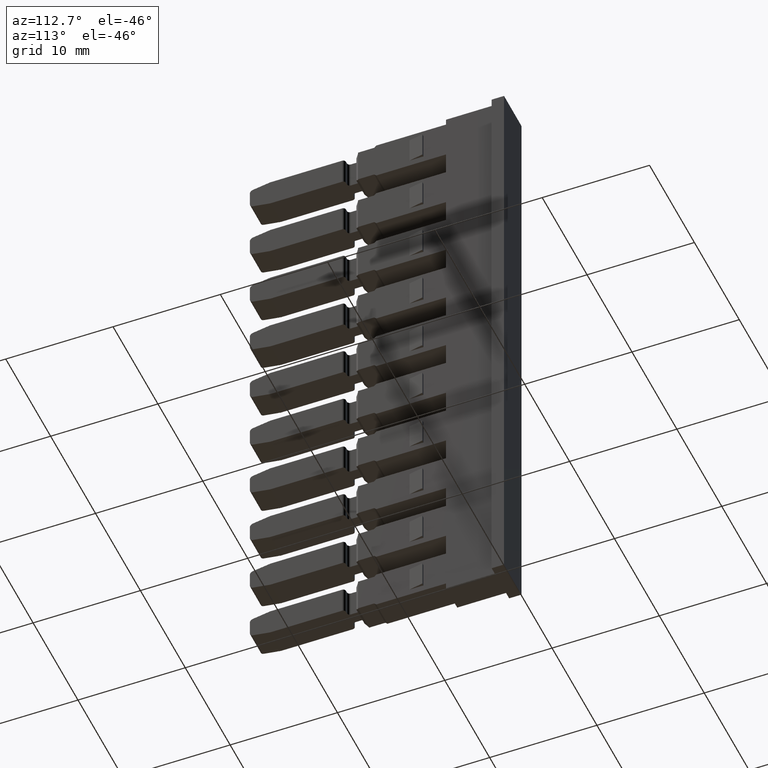
[diagram: clean part render]
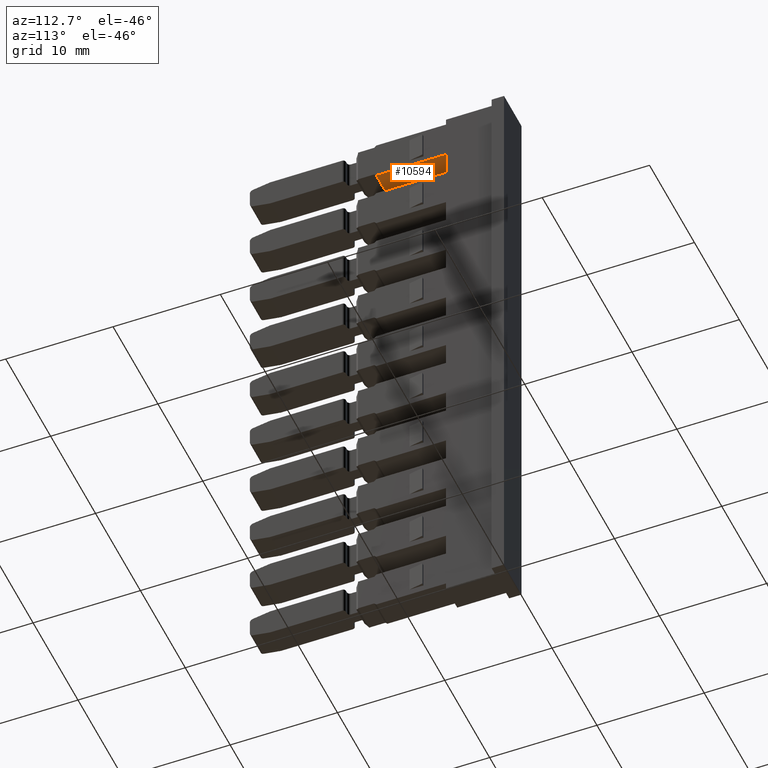
[diagram: same view with one face highlighted and labeled with its STEP entity id]
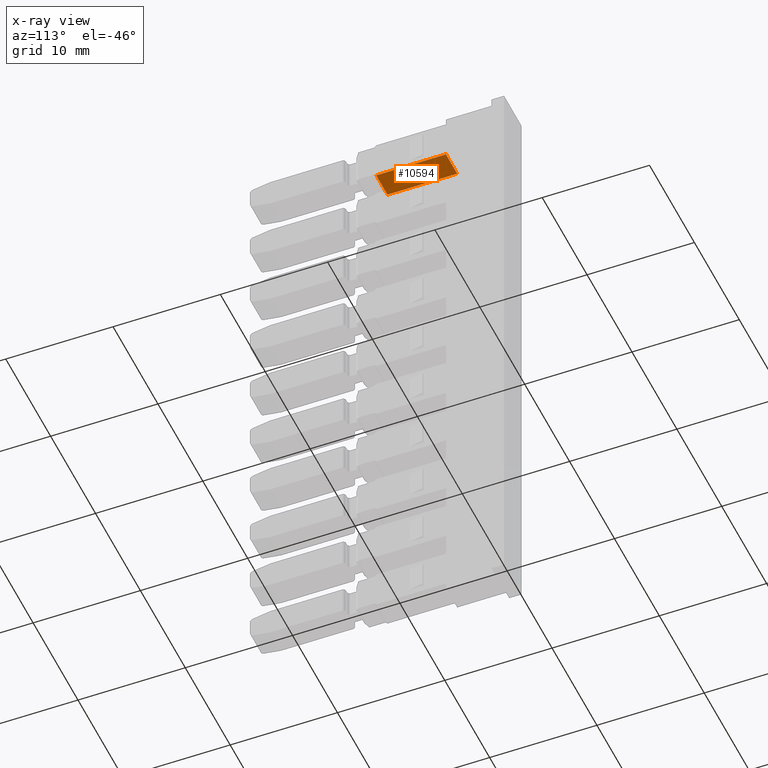
[diagram: x-ray of the same camera — body ghosted, the highlighted face saturated]
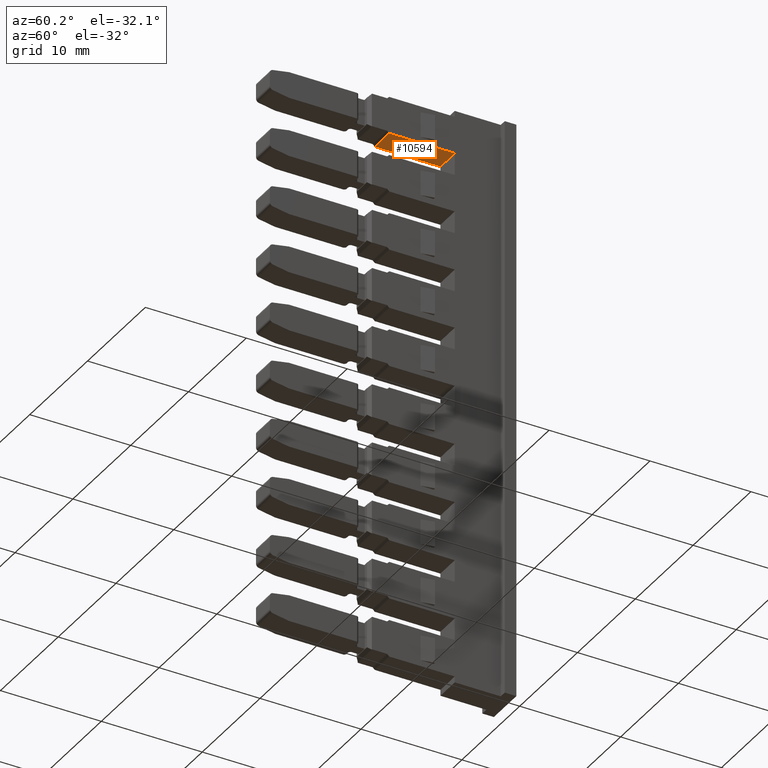
[diagram: same view with one face highlighted and labeled with its STEP entity id]
A machine part, auxiliary view. The second image highlights one B-rep face of the part: STEP entity #10594.
The next image is the same camera in x-ray: the body ghosted, the highlighted face saturated — about 0% of this face is hidden behind the body in this view.
A second angle (auxiliary view) of the same face is appended — the face is thin or edge-on in the first view.
In plain terms, the highlighted planar face has unit normal (0, 0, -1).
Its self-contained STEP definition (entity closure, byte-faithful):
#1067 = VERTEX_POINT ( 'NONE', #4811 ) ;
#1072 = VERTEX_POINT ( 'NONE', #4833 ) ;
#1086 = VERTEX_POINT ( 'NONE', #4801 ) ;
#1539 = VECTOR ( 'NONE', #12419, 1000.000000000000000 ) ;
#1620 = VECTOR ( 'NONE', #12653, 1000.000000000000000 ) ;
#1641 = VECTOR ( 'NONE', #12588, 1000.000000000000000 ) ;
#1658 = VECTOR ( 'NONE', #12705, 1000.000000000000000 ) ;
#2821 = EDGE_CURVE ( 'NONE', #8605, #1072, #12424, .T. ) ;
#2887 = EDGE_CURVE ( 'NONE', #1072, #1067, #12597, .T. ) ;
#2899 = EDGE_CURVE ( 'NONE', #1086, #8605, #12654, .T. ) ;
#2909 = EDGE_CURVE ( 'NONE', #1067, #1086, #12696, .T. ) ;
#4801 = CARTESIAN_POINT ( 'NONE',  ( 1459.267071211366300, 997.4946795375179800, -81.34999999999136800 ) ) ;
#4811 = CARTESIAN_POINT ( 'NONE',  ( 1459.267071211366600, 1003.994679537520100, -81.34999999999109800 ) ) ;
#4833 = CARTESIAN_POINT ( 'NONE',  ( 1456.769071211365800, 1003.994679537520300, -81.34999999999124000 ) ) ;
#5305 = ORIENTED_EDGE ( 'NONE', *, *, #2821, .T. ) ;
#5308 = ORIENTED_EDGE ( 'NONE', *, *, #2887, .T. ) ;
#5310 = ORIENTED_EDGE ( 'NONE', *, *, #2899, .T. ) ;
#5316 = ORIENTED_EDGE ( 'NONE', *, *, #2909, .T. ) ;
#6320 = CARTESIAN_POINT ( 'NONE',  ( 1516.460390188475000, 997.4946795375182100, -81.34999999999078600 ) ) ;
#6364 = FACE_OUTER_BOUND ( 'NONE', #8080, .T. ) ;
#6369 = PLANE ( 'NONE',  #13527 ) ;
#6371 = DIRECTION ( 'NONE',  ( 5.145373498328744900E-015, 3.582728517178750100E-016, -1.000000000000000000 ) ) ;
#6390 = DIRECTION ( 'NONE',  ( -1.000000000000000000, 0.0000000000000000000, -5.145373498328744900E-015 ) ) ;
#8080 = EDGE_LOOP ( 'NONE', ( #5308, #5316, #5310, #5305 ) ) ;
#8605 = VERTEX_POINT ( 'NONE', #9470 ) ;
#9470 = CARTESIAN_POINT ( 'NONE',  ( 1456.769071211365800, 997.4946795375181000, -81.34999999999145400 ) ) ;
#10594 = ADVANCED_FACE ( 'NONE', ( #6364 ), #6369, .T. ) ;
#12419 = DIRECTION ( 'NONE',  ( -1.843447636399818300E-030, 1.000000000000000000, 3.582728517178750100E-016 ) ) ;
#12424 = LINE ( 'NONE', #12435, #1539 ) ;
#12435 = CARTESIAN_POINT ( 'NONE',  ( 1456.769071211365800, 997.4946795375182100, -81.34999999999109800 ) ) ;
#12586 = CARTESIAN_POINT ( 'NONE',  ( 1516.460390188475000, 1003.994679537520300, -81.34999999999078600 ) ) ;
#12588 = DIRECTION ( 'NONE',  ( 1.000000000000000000, -0.0000000000000000000, 5.145373498328744900E-015 ) ) ;
#12597 = LINE ( 'NONE', #12586, #1641 ) ;
#12649 = CARTESIAN_POINT ( 'NONE',  ( 1516.460390188475000, 997.4946795375182100, -81.34999999999078600 ) ) ;
#12653 = DIRECTION ( 'NONE',  ( -1.000000000000000000, 0.0000000000000000000, -5.145373498328744900E-015 ) ) ;
#12654 = LINE ( 'NONE', #12649, #1620 ) ;
#12696 = LINE ( 'NONE', #12718, #1658 ) ;
#12705 = DIRECTION ( 'NONE',  ( -1.280238727656624100E-014, -1.000000000000000000, 0.0000000000000000000 ) ) ;
#12718 = CARTESIAN_POINT ( 'NONE',  ( 1459.267071211366600, 1007.642679537518000, -81.34999999999109800 ) ) ;
#13527 = AXIS2_PLACEMENT_3D ( 'NONE', #6320, #6371, #6390 ) ;